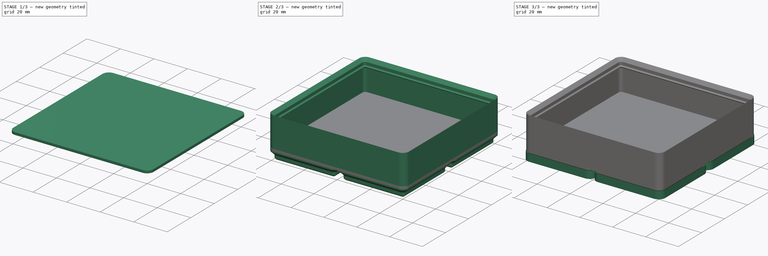
[diagram: build sequence overview — one tinted view per stage of 3, left to right]
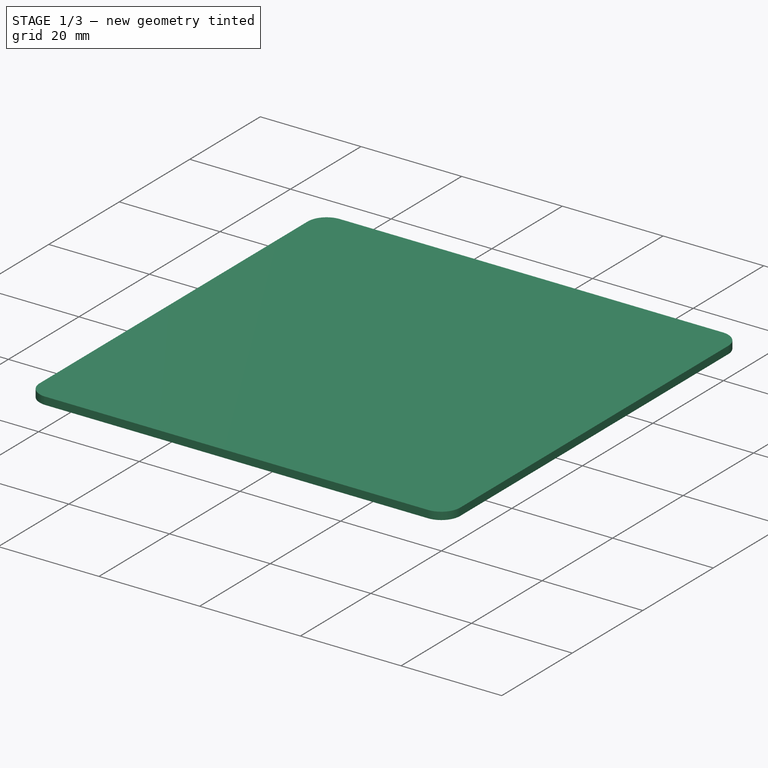
[diagram: stage 1 of 3 — iso view after this stage's code; geometry added in this stage tinted green]
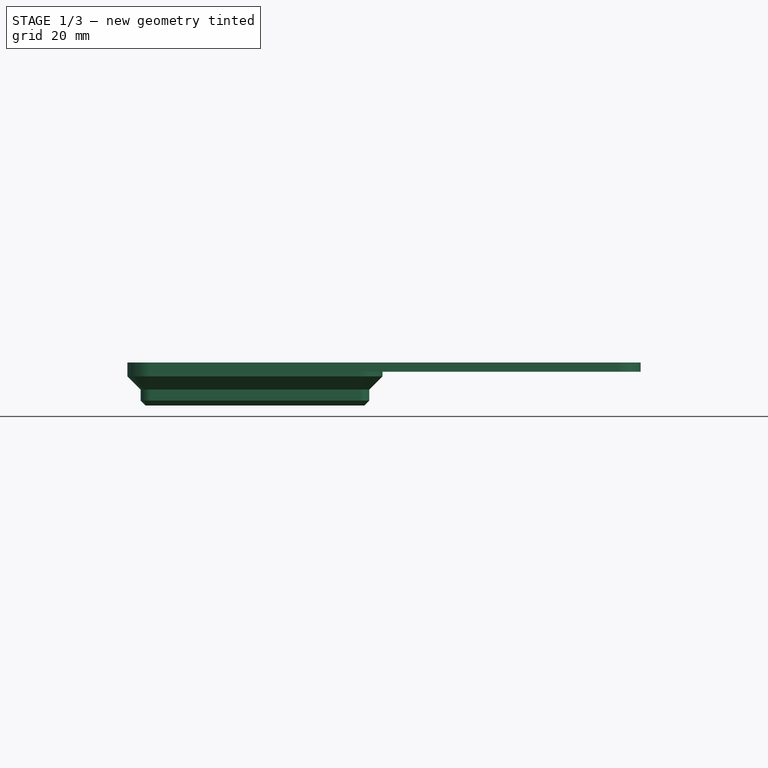
[diagram: stage 1 of 3 — front view after this stage's code; geometry added in this stage tinted green]
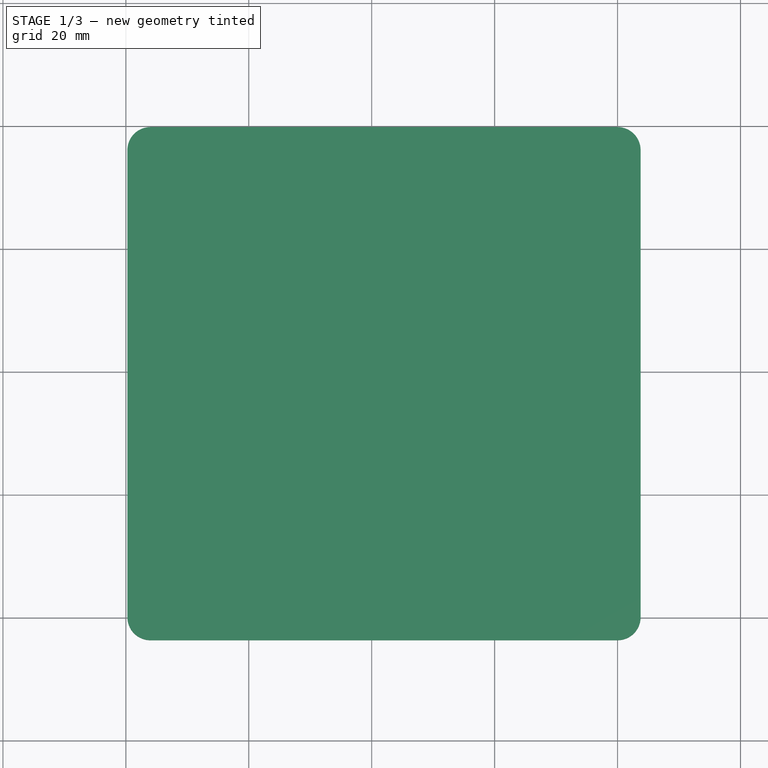
[diagram: stage 1 of 3 — top view after this stage's code; geometry added in this stage tinted green]
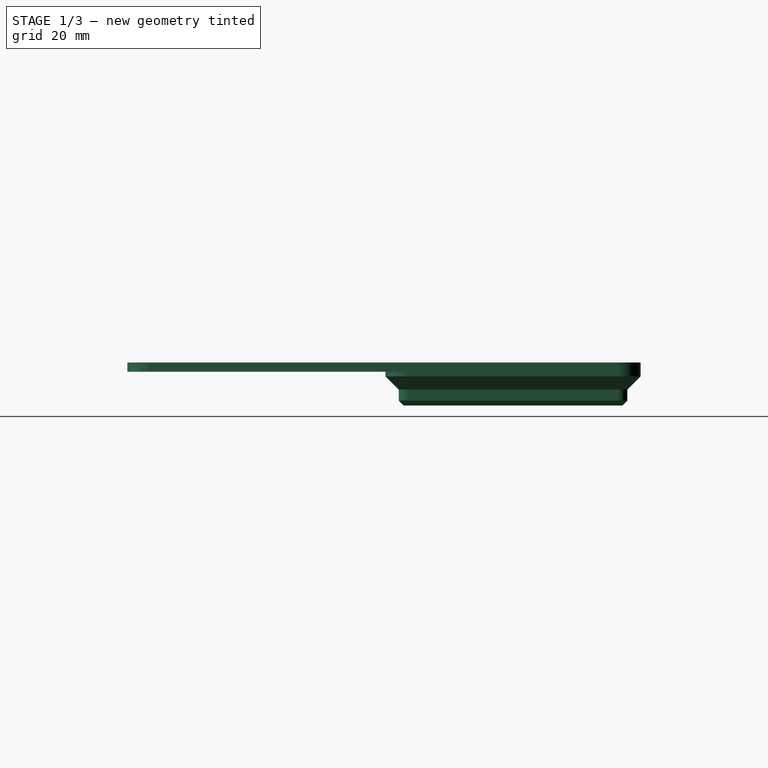
[diagram: stage 1 of 3 — right view after this stage's code; geometry added in this stage tinted green]
FCSTD DOCUMENT  (FreeCAD 0.21R33668 +26 (Git))
Label: Gridfinity Generator
License: All rights reserved
LicenseURL: http://en.wikipedia.org/wiki/All_rights_reserved
objects: Sketcher::SketchObject×11, PartDesign::Plane×8, PartDesign::LinearPattern×4, Spreadsheet::Sheet×3, PartDesign::AdditivePipe×2, PartDesign::MultiTransform×2, PartDesign::Body×2, PartDesign::Pad×2, PartDesign::AdditiveLoft×1
note: 37 computed .brp shape members not serialized (recipe doc carries the construction recipe); baked Part::Feature solids carry a one-line shape summary decoded from their .brp

FEATURE [PartDesign::Body] Body  label="Baseplate"
  Group = -> [Sketch,DatumPlane,Sketch001,AdditivePipe,MultiTransform,LinearPattern,LinearPattern001]
  Origin = -> Origin
  Tip = -> MultiTransform
FEATURE [Sketcher::SketchObject] Sketch002
  FullyConstrained = true
  MapMode = 5
  Support = -> [XY_Plane001]
  expr: Constraints[10] = <<Module Design Reference>>.base_width
  expr: Constraints[57] = <<Module Design Reference>>.base_profile1_diameter
  expr: Constraints[58] = <<Module Design Reference>>.base_profile1_width
  sketch-geometry (24):
    g0: LineSegment StartX=0 StartY=0 StartZ=0 EndX=42 EndY=0 EndZ=0
    g1: LineSegment StartX=42 StartY=0 StartZ=0 EndX=42 EndY=-42 EndZ=0
    g2: LineSegment StartX=42 StartY=-42 StartZ=0 EndX=0 EndY=-42 EndZ=0
    g3: LineSegment StartX=0 StartY=-42 StartZ=0 EndX=0 EndY=0 EndZ=0
    g4: LineSegment StartX=0 StartY=0 StartZ=0 EndX=3.2 EndY=0 EndZ=0
    g5: LineSegment StartX=3.2 StartY=0 StartZ=0 EndX=3.2 EndY=-3.2 EndZ=0
    g6: LineSegment StartX=3.2 StartY=-3.2 StartZ=0 EndX=0 EndY=-3.2 EndZ=0
    g7: LineSegment StartX=0 StartY=-3.2 StartZ=0 EndX=0 EndY=0 EndZ=0
    g8: LineSegment StartX=42 StartY=-42 StartZ=0 EndX=38.8 EndY=-42 EndZ=0
    g9: LineSegment StartX=38.8 StartY=-42 StartZ=0 EndX=38.8 EndY=-38.8 EndZ=0
    g10: LineSegment StartX=38.8 StartY=-38.8 StartZ=0 EndX=42 EndY=-38.8 EndZ=0
    g11: LineSegment StartX=42 StartY=-38.8 StartZ=0 EndX=42 EndY=-42 EndZ=0
    g12: LineSegment StartX=4 StartY=-3.2 StartZ=0 EndX=38 EndY=-3.2 EndZ=0
    g13: LineSegment StartX=38.8 StartY=-4 StartZ=0 EndX=38.8 EndY=-38 EndZ=0
    g14: LineSegment StartX=38 StartY=-38.8 StartZ=0 EndX=4 EndY=-38.8 EndZ=0
    g15: LineSegment StartX=3.2 StartY=-38 StartZ=0 EndX=3.2 EndY=-4 EndZ=0
    g16: ArcOfCircle CenterX=4 CenterY=-4 CenterZ=0 NormalX=0 NormalY=0 NormalZ=1 AngleXU=0 Radius=0.8 StartAngle=1.5708 EndAngle=3.14159
    g17: GeomPoint X=3.2 Y=-3.2 Z=0
    g18: ArcOfCircle CenterX=4 CenterY=-38 CenterZ=0 NormalX=0 NormalY=0 NormalZ=1 AngleXU=0 Radius=0.8 StartAngle=3.14159 EndAngle=4.71239
    g19: GeomPoint X=3.2 Y=-38.8 Z=0
    g20: ArcOfCircle CenterX=38 CenterY=-38 CenterZ=0 NormalX=0 NormalY=0 NormalZ=1 AngleXU=0 Radius=0.8 StartAngle=4.71239 EndAngle=6.28319
    g21: GeomPoint X=38.8 Y=-38.8 Z=0
    g22: ArcOfCircle CenterX=38 CenterY=-4 CenterZ=0 NormalX=0 NormalY=0 NormalZ=1 AngleXU=0 Radius=0.8 StartAngle=-9e-16 EndAngle=1.5708
    g23: GeomPoint X=38.8 Y=-3.2 Z=0
  constraints (59):
    c: Coincident(g0,g1)
    c: Coincident(g1,g2)
    c: Coincident(g2,g3)
    c: Coincident(g3,g0)
    c: Horizontal(g0)
    c: Horizontal(g2)
    c: Vertical(g1)
    c: Vertical(g3)
    c: Coincident(g0,g-1)
    c: Equal(g1,g2)
    c: DistanceY(g1,g1) = 42
    c: Coincident(g4,g5)
    c: Coincident(g5,g6)
    c: Coincident(g6,g7)
    c: Coincident(g7,g4)
    c: Horizontal(g4)
    c: Horizontal(g6)
    c: Vertical(g5)
    c: Vertical(g7)
    c: Coincident(g4,g0)
    c: Coincident(g8,g9)
    c: Coincident(g9,g10)
    c: Coincident(g10,g11)
    c: Coincident(g11,g8)
    c: Horizontal(g8)
    c: Horizontal(g10)
    c: Vertical(g9)
    c: Vertical(g11)
    c: Coincident(g8,g1)
    c: Equal(g10,g9)
    c: Equal(g9,g6)
    c: Equal(g6,g5)
    c: Horizontal(g12)
    c: Horizontal(g14)
    c: Vertical(g13)
    c: Vertical(g15)
    c: Coincident(g17,g5)
    c: Coincident(g21,g9)
    c: PointOnObject(g17,g12)
    c: PointOnObject(g17,g15)
    c: Tangent(g12,g16) = 1.5708
    c: Tangent(g15,g16) = 1.5708
    c: PointOnObject(g19,g15)
    c: PointOnObject(g19,g14)
    c: Tangent(g15,g18) = 1.5708
    c: Tangent(g14,g18) = 1.5708
    c: PointOnObject(g21,g14)
    c: PointOnObject(g21,g13)
    c: Tangent(g14,g20) = 1.5708
    c: Tangent(g13,g20) = 1.5708
    c: PointOnObject(g23,g13)
    c: PointOnObject(g23,g12)
    c: Tangent(g13,g22) = 1.5708
    c: Tangent(g12,g22) = 1.5708
    c: Equal(g22,g16)
    c: Equal(g16,g18)
    c: Equal(g18,g20)
    c: Diameter(g20) = 1.6
    c: DistanceY(g9,g23) = 35.6
FEATURE [PartDesign::Plane] DatumPlane001
  AttachmentOffset = pos=(0,0,0.8) rot=(0,0,1;0rad)
  Length = 130.5
  MapMode = 2
  Placement = pos=(0,0,0.8) rot=(0,0,1;0rad)
  ResizeMode = 0
  Support = -> [Sketch002]
  Width = 130.5
  expr: .AttachmentOffset.Base.z = <<Module Design Reference>>.base_profile1_height
FEATURE [Sketcher::SketchObject] Sketch003
  FullyConstrained = true
  MapMode = 5
  Placement = pos=(0,0,0.8) rot=(0,0,1;0rad)
  Support = -> [DatumPlane001]
  expr: Constraints[10] = <<Module Design Reference>>.base_width
  expr: Constraints[54] = <<Module Design Reference>>.base_profile2_diameter
  expr: Constraints[55] = <<Module Design Reference>>.base_profile2_width
  sketch-geometry (24):
    g0: LineSegment StartX=0 StartY=0 StartZ=0 EndX=42 EndY=0 EndZ=0
    g1: LineSegment StartX=42 StartY=0 StartZ=0 EndX=42 EndY=-42 EndZ=0
    g2: LineSegment StartX=42 StartY=-42 StartZ=0 EndX=0 EndY=-42 EndZ=0
    g3: LineSegment StartX=0 StartY=-42 StartZ=0 EndX=0 EndY=0 EndZ=0
    g4: LineSegment StartX=0 StartY=0 StartZ=0 EndX=2.4 EndY=0 EndZ=0
    g5: LineSegment StartX=2.4 StartY=0 StartZ=0 EndX=2.4 EndY=-2.4 EndZ=0
    g6: LineSegment StartX=2.4 StartY=-2.4 StartZ=0 EndX=0 EndY=-2.4 EndZ=0
    g7: LineSegment StartX=0 StartY=-2.4 StartZ=0 EndX=0 EndY=0 EndZ=0
    g8: LineSegment StartX=42 StartY=-42 StartZ=0 EndX=39.6 EndY=-42 EndZ=0
    g9: LineSegment StartX=39.6 StartY=-42 StartZ=0 EndX=39.6 EndY=-39.6 EndZ=0
    g10: LineSegment StartX=39.6 StartY=-39.6 StartZ=0 EndX=42 EndY=-39.6 EndZ=0
    g11: LineSegment StartX=42 StartY=-39.6 StartZ=0 EndX=42 EndY=-42 EndZ=0
    g12: LineSegment StartX=4 StartY=-2.4 StartZ=0 EndX=38 EndY=-2.4 EndZ=0
    g13: LineSegment StartX=39.6 StartY=-4 StartZ=0 EndX=39.6 EndY=-38 EndZ=0
    g14: LineSegment StartX=38 StartY=-39.6 StartZ=0 EndX=4 EndY=-39.6 EndZ=0
    g15: LineSegment StartX=2.4 StartY=-38 StartZ=0 EndX=2.4 EndY=-4 EndZ=0
    g16: ArcOfCircle CenterX=4 CenterY=-4 CenterZ=0 NormalX=0 NormalY=0 NormalZ=1 AngleXU=0 Radius=1.6 StartAngle=1.5708 EndAngle=3.14159
    g17: GeomPoint X=2.4 Y=-2.4 Z=0
    g18: ArcOfCircle CenterX=4 CenterY=-38 CenterZ=0 NormalX=0 NormalY=0 NormalZ=1 AngleXU=0 Radius=1.6 StartAngle=3.14159 EndAngle=4.71239
    g19: GeomPoint X=2.4 Y=-39.6 Z=0
    g20: ArcOfCircle CenterX=38 CenterY=-38 CenterZ=0 NormalX=0 NormalY=0 NormalZ=1 AngleXU=0 Radius=1.6 StartAngle=4.71239 EndAngle=6.28319
    g21: GeomPoint X=39.6 Y=-39.6 Z=0
    g22: ArcOfCircle CenterX=38 CenterY=-4 CenterZ=0 NormalX=0 NormalY=0 NormalZ=1 AngleXU=0 Radius=1.6 StartAngle=0 EndAngle=1.5708
    g23: GeomPoint X=39.6 Y=-2.4 Z=0
  constraints (59):
    c: Coincident(g0,g1)
    c: Coincident(g1,g2)
    c: Coincident(g2,g3)
    c: Coincident(g3,g0)
    c: Horizontal(g0)
    c: Horizontal(g2)
    c: Vertical(g1)
    c: Vertical(g3)
    c: Coincident(g0,g-1)
    c: Equal(g1,g2)
    c: DistanceY(g1,g1) = 42
    c: Coincident(g4,g5)
    c: Coincident(g5,g6)
    c: Coincident(g6,g7)
    c: Coincident(g7,g4)
    c: Horizontal(g4)
    c: Horizontal(g6)
    c: Vertical(g5)
    c: Vertical(g7)
    c: Coincident(g4,g0)
    c: Coincident(g8,g9)
    c: Coincident(g9,g10)
    c: Coincident(g10,g11)
    c: Coincident(g11,g8)
    c: Horizontal(g8)
    c: Horizontal(g10)
    c: Vertical(g9)
    c: Vertical(g11)
    c: Coincident(g8,g1)
    c: Horizontal(g12)
    c: Horizontal(g14)
    c: Vertical(g13)
    c: Vertical(g15)
    c: Coincident(g17,g5)
    c: Coincident(g21,g9)
    c: PointOnObject(g17,g12)
    c: PointOnObject(g17,g15)
    c: Tangent(g12,g16) = 1.5708
    c: Tangent(g15,g16) = 1.5708
    c: PointOnObject(g19,g15)
    c: PointOnObject(g19,g14)
    c: Tangent(g15,g18) = 1.5708
    c: Tangent(g14,g18) = 1.5708
    c: PointOnObject(g21,g14)
    c: PointOnObject(g21,g13)
    c: Tangent(g14,g20) = 1.5708
    c: Tangent(g13,g20) = 1.5708
    c: PointOnObject(g23,g13)
    c: PointOnObject(g23,g12)
    c: Tangent(g13,g22) = 1.5708
    c: Tangent(g12,g22) = 1.5708
    c: Equal(g22,g16)
    c: Equal(g16,g18)
    c: Equal(g18,g20)
    c: Diameter(g20) = 3.2
    c: DistanceY(g9,g23) = 37.2
    c: Equal(g13,g14)
    c: Equal(g5,g6)
    c: Equal(g6,g9)
FEATURE [PartDesign::Plane] DatumPlane002
  AttachmentOffset = pos=(0,0,1.8) rot=(0,0,1;0rad)
  Length = 130.5
  MapMode = 2
  Placement = pos=(0,0,2.6) rot=(0,0,1;0rad)
  ResizeMode = 0
  Support = -> [Sketch003]
  Width = 130.5
  expr: .AttachmentOffset.Base.z = <<Module Design Reference>>.base_profile2_height
FEATURE [Sketcher::SketchObject] Sketch004
  FullyConstrained = true
  MapMode = 5
  Placement = pos=(0,0,2.6) rot=(0,0,1;0rad)
  Support = -> [DatumPlane002]
  expr: Constraints[10] = <<Module Design Reference>>.base_width
  expr: Constraints[54] = <<Module Design Reference>>.base_profile3_diameter
  expr: Constraints[55] = <<Module Design Reference>>.base_profile3_width
  sketch-geometry (24):
    g0: LineSegment StartX=0 StartY=0 StartZ=0 EndX=42 EndY=0 EndZ=0
    g1: LineSegment StartX=42 StartY=0 StartZ=0 EndX=42 EndY=-42 EndZ=0
    g2: LineSegment StartX=42 StartY=-42 StartZ=0 EndX=0 EndY=-42 EndZ=0
    g3: LineSegment StartX=0 StartY=-42 StartZ=0 EndX=0 EndY=0 EndZ=0
    g4: LineSegment StartX=0 StartY=0 StartZ=0 EndX=2.4 EndY=0 EndZ=0
    g5: LineSegment StartX=2.4 StartY=0 StartZ=0 EndX=2.4 EndY=-2.4 EndZ=0
    g6: LineSegment StartX=2.4 StartY=-2.4 StartZ=0 EndX=0 EndY=-2.4 EndZ=0
    g7: LineSegment StartX=0 StartY=-2.4 StartZ=0 EndX=0 EndY=0 EndZ=0
    g8: LineSegment StartX=42 StartY=-42 StartZ=0 EndX=39.6 EndY=-42 EndZ=0
    g9: LineSegment StartX=39.6 StartY=-42 StartZ=0 EndX=39.6 EndY=-39.6 EndZ=0
    g10: LineSegment StartX=39.6 StartY=-39.6 StartZ=0 EndX=42 EndY=-39.6 EndZ=0
    g11: LineSegment StartX=42 StartY=-39.6 StartZ=0 EndX=42 EndY=-42 EndZ=0
    g12: LineSegment StartX=4 StartY=-2.4 StartZ=0 EndX=38 EndY=-2.4 EndZ=0
    g13: LineSegment StartX=39.6 StartY=-4 StartZ=0 EndX=39.6 EndY=-38 EndZ=0
    g14: LineSegment StartX=38 StartY=-39.6 StartZ=0 EndX=4 EndY=-39.6 EndZ=0
    g15: LineSegment StartX=2.4 StartY=-38 StartZ=0 EndX=2.4 EndY=-4 EndZ=0
    g16: ArcOfCircle CenterX=4 CenterY=-4 CenterZ=0 NormalX=0 NormalY=0 NormalZ=1 AngleXU=0 Radius=1.6 StartAngle=1.5708 EndAngle=3.14159
    g17: GeomPoint X=2.4 Y=-2.4 Z=0
    g18: ArcOfCircle CenterX=4 CenterY=-38 CenterZ=0 NormalX=0 NormalY=0 NormalZ=1 AngleXU=0 Radius=1.6 StartAngle=3.14159 EndAngle=4.71239
    g19: GeomPoint X=2.4 Y=-39.6 Z=0
    g20: ArcOfCircle CenterX=38 CenterY=-38 CenterZ=0 NormalX=0 NormalY=0 NormalZ=1 AngleXU=0 Radius=1.6 StartAngle=4.71239 EndAngle=6.28319
    g21: GeomPoint X=39.6 Y=-39.6 Z=0
    g22: ArcOfCircle CenterX=38 CenterY=-4 CenterZ=0 NormalX=0 NormalY=0 NormalZ=1 AngleXU=0 Radius=1.6 StartAngle=0 EndAngle=1.5708
    g23: GeomPoint X=39.6 Y=-2.4 Z=0
  constraints (59):
    c: Coincident(g0,g1)
    c: Coincident(g1,g2)
    c: Coincident(g2,g3)
    c: Coincident(g3,g0)
    c: Horizontal(g0)
    c: Horizontal(g2)
    c: Vertical(g1)
    c: Vertical(g3)
    c: Coincident(g0,g-1)
    c: Equal(g1,g2)
    c: DistanceY(g1,g1) = 42
    c: Coincident(g4,g5)
    c: Coincident(g5,g6)
    c: Coincident(g6,g7)
    c: Coincident(g7,g4)
    c: Horizontal(g4)
    c: Horizontal(g6)
    c: Vertical(g5)
    c: Vertical(g7)
    c: Coincident(g4,g0)
    c: Coincident(g8,g9)
    c: Coincident(g9,g10)
    c: Coincident(g10,g11)
    c: Coincident(g11,g8)
    c: Horizontal(g8)
    c: Horizontal(g10)
    c: Vertical(g9)
    c: Vertical(g11)
    c: Coincident(g8,g1)
    c: Equal(g10,g9)
    c: Equal(g9,g5)
    c: Equal(g5,g6)
    c: Horizontal(g12)
    c: Horizontal(g14)
    c: Vertical(g13)
    c: Vertical(g15)
    c: Coincident(g17,g5)
    c: Coincident(g21,g9)
    c: PointOnObject(g17,g12)
    c: PointOnObject(g17,g15)
    c: Tangent(g12,g16) = 1.5708
    c: Tangent(g15,g16) = 1.5708
    c: PointOnObject(g19,g15)
    c: PointOnObject(g19,g14)
    c: Tangent(g15,g18) = 1.5708
    c: Tangent(g14,g18) = 1.5708
    c: PointOnObject(g21,g14)
    c: PointOnObject(g21,g13)
    c: Tangent(g14,g20) = 1.5708
    c: Tangent(g13,g20) = 1.5708
    c: PointOnObject(g23,g13)
    c: PointOnObject(g23,g12)
    c: Tangent(g13,g22) = 1.5708
    c: Tangent(g12,g22) = 1.5708
    c: Diameter(g20) = 3.2
    c: DistanceY(g9,g23) = 37.2
    c: Equal(g13,g14)
    c: Equal(g20,g22)
    c: Equal(g22,g16)
FEATURE [PartDesign::Plane] DatumPlane003
  AttachmentOffset = pos=(0,0,2.15) rot=(0,0,1;0rad)
  Length = 130.5
  MapMode = 2
  Placement = pos=(0,0,4.75) rot=(0,0,1;0rad)
  ResizeMode = 0
  Support = -> [Sketch004]
  Width = 130.5
  expr: .AttachmentOffset.Base.z = <<Module Design Reference>>.base_profile3_height
FEATURE [Sketcher::SketchObject] Sketch005
  FullyConstrained = true
  MapMode = 5
  Placement = pos=(0,0,4.75) rot=(0,0,1;0rad)
  Support = -> [DatumPlane003]
  expr: Constraints[10] = <<Module Design Reference>>.base_width
  expr: Constraints[57] = <<Module Design Reference>>.base_profile4_diameter
  expr: Constraints[58] = <<Module Design Reference>>.base_profile4_width
  sketch-geometry (24):
    g0: LineSegment StartX=0 StartY=0 StartZ=0 EndX=42 EndY=0 EndZ=0
    g1: LineSegment StartX=42 StartY=0 StartZ=0 EndX=42 EndY=-42 EndZ=0
    g2: LineSegment StartX=42 StartY=-42 StartZ=0 EndX=0 EndY=-42 EndZ=0
    g3: LineSegment StartX=0 StartY=-42 StartZ=0 EndX=0 EndY=0 EndZ=0
    g4: LineSegment StartX=0 StartY=0 StartZ=0 EndX=0.25 EndY=0 EndZ=0
    g5: LineSegment StartX=0.25 StartY=0 StartZ=0 EndX=0.25 EndY=-0.25 EndZ=0
    g6: LineSegment StartX=0.25 StartY=-0.25 StartZ=0 EndX=0 EndY=-0.25 EndZ=0
    g7: LineSegment StartX=0 StartY=-0.25 StartZ=0 EndX=0 EndY=0 EndZ=0
    g8: LineSegment StartX=42 StartY=-42 StartZ=0 EndX=41.75 EndY=-42 EndZ=0
    g9: LineSegment StartX=41.75 StartY=-42 StartZ=0 EndX=41.75 EndY=-41.75 EndZ=0
    g10: LineSegment StartX=41.75 StartY=-41.75 StartZ=0 EndX=42 EndY=-41.75 EndZ=0
    g11: LineSegment StartX=42 StartY=-41.75 StartZ=0 EndX=42 EndY=-42 EndZ=0
    g12: LineSegment StartX=4 StartY=-0.25 StartZ=0 EndX=38 EndY=-0.25 EndZ=0
    g13: LineSegment StartX=41.75 StartY=-4 StartZ=0 EndX=41.75 EndY=-38 EndZ=0
    g14: LineSegment StartX=38 StartY=-41.75 StartZ=0 EndX=4 EndY=-41.75 EndZ=0
    g15: LineSegment StartX=0.25 StartY=-38 StartZ=0 EndX=0.25 EndY=-4 EndZ=0
    g16: ArcOfCircle CenterX=4 CenterY=-4 CenterZ=0 NormalX=0 NormalY=0 NormalZ=1 AngleXU=0 Radius=3.75 StartAngle=1.5708 EndAngle=3.14159
    g17: GeomPoint X=0.25 Y=-0.25 Z=0
    g18: ArcOfCircle CenterX=4 CenterY=-38 CenterZ=0 NormalX=0 NormalY=0 NormalZ=1 AngleXU=0 Radius=3.75 StartAngle=3.14159 EndAngle=4.71239
    g19: GeomPoint X=0.25 Y=-41.75 Z=0
    g20: ArcOfCircle CenterX=38 CenterY=-38 CenterZ=0 NormalX=0 NormalY=0 NormalZ=1 AngleXU=0 Radius=3.75 StartAngle=4.71239 EndAngle=6.28319
    g21: GeomPoint X=41.75 Y=-41.75 Z=0
    g22: ArcOfCircle CenterX=38 CenterY=-4 CenterZ=0 NormalX=0 NormalY=0 NormalZ=1 AngleXU=0 Radius=3.75 StartAngle=0 EndAngle=1.5708
    g23: GeomPoint X=41.75 Y=-0.25 Z=0
  constraints (59):
    c: Coincident(g0,g1)
    c: Coincident(g1,g2)
    c: Coincident(g2,g3)
    c: Coincident(g3,g0)
    c: Horizontal(g0)
    c: Horizontal(g2)
    c: Vertical(g1)
    c: Vertical(g3)
    c: Coincident(g0,g-1)
    c: Equal(g1,g2)
    c: DistanceY(g1,g1) = 42
    c: Coincident(g4,g5)
    c: Coincident(g5,g6)
    c: Coincident(g6,g7)
    c: Coincident(g7,g4)
    c: Horizontal(g4)
    c: Horizontal(g6)
    c: Vertical(g5)
    c: Vertical(g7)
    c: Coincident(g4,g0)
    c: Coincident(g8,g9)
    c: Coincident(g9,g10)
    c: Coincident(g10,g11)
    c: Coincident(g11,g8)
    c: Horizontal(g8)
    c: Horizontal(g10)
    c: Vertical(g9)
    c: Vertical(g11)
    c: Coincident(g8,g1)
    c: Equal(g10,g9)
    c: Equal(g9,g5)
    c: Equal(g5,g6)
    c: Horizontal(g12)
    c: Horizontal(g14)
    c: Vertical(g13)
    c: Vertical(g15)
    c: Coincident(g17,g5)
    c: Coincident(g21,g9)
    c: PointOnObject(g17,g12)
    c: PointOnObject(g17,g15)
    c: Tangent(g12,g16) = 1.5708
    c: Tangent(g15,g16) = 1.5708
    c: PointOnObject(g19,g15)
    c: PointOnObject(g19,g14)
    c: Tangent(g15,g18) = 1.5708
    c: Tangent(g14,g18) = 1.5708
    c: PointOnObject(g21,g14)
    c: PointOnObject(g21,g13)
    c: Tangent(g14,g20) = 1.5708
    c: Tangent(g13,g20) = 1.5708
    c: PointOnObject(g23,g13)
    c: PointOnObject(g23,g12)
    c: Tangent(g13,g22) = 1.5708
    c: Tangent(g12,g22) = 1.5708
    c: Equal(g16,g18)
    c: Equal(g18,g20)
    c: Equal(g20,g22)
    c: Diameter(g20) = 7.5
    c: DistanceY(g9,g23) = 41.5
FEATURE [PartDesign::Plane] DatumPlane004
  AttachmentOffset = pos=(0,0,1) rot=(0,0,1;0rad)
  Length = 130.5
  MapMode = 2
  Placement = pos=(0,0,5.75) rot=(0,0,1;0rad)
  ResizeMode = 0
  Support = -> [Sketch005]
  Width = 130.5
  expr: .AttachmentOffset.Base.z = <<Module Design Reference>>.base_profile4_height
FEATURE [PartDesign::Plane] DatumPlane005
  AttachmentOffset = pos=(0,0,5.5) rot=(0,0,1;0rad)
  Length = 130.5
  MapMode = 5
  Placement = pos=(0,0,5.5) rot=(0,0,1;0rad)
  ResizeMode = 0
  Support = -> [XY_Plane001]
  Width = 130.5
  expr: .AttachmentOffset.Base.z = <<Module Design Reference>>.base_floor_height
FEATURE [Sketcher::SketchObject] Sketch007
  FullyConstrained = true
  MapMode = 5
  Placement = pos=(0,0,5.5) rot=(0,0,1;0rad)
  Support = -> [DatumPlane005]
  expr: Constraints[10] = <<Parameters>>.gridfinity_row_count * <<Module Design Reference>>.base_width
  expr: Constraints[34] = <<Module Design Reference>>.outer_wall_diameter
  expr: Constraints[45] = <<Module Design Reference>>.base_tolerance / 2
  expr: Constraints[46] = <<Module Design Reference>>.base_tolerance / 2
  expr: Constraints[57] = <<Module Design Reference>>.base_tolerance / 2
  expr: Constraints[58] = <<Module Design Reference>>.base_tolerance / 2
  expr: Constraints[9] = <<Parameters>>.gridfinity_column_count * <<Module Design Reference>>.base_width
  sketch-geometry (24):
    g0: LineSegment StartX=0 StartY=0 StartZ=0 EndX=84 EndY=0 EndZ=0
    g1: LineSegment StartX=84 StartY=0 StartZ=0 EndX=84 EndY=-84 EndZ=0
    g2: LineSegment StartX=84 StartY=-84 StartZ=0 EndX=0 EndY=-84 EndZ=0
    g3: LineSegment StartX=0 StartY=-84 StartZ=0 EndX=0 EndY=0 EndZ=0
    g4: LineSegment StartX=4 StartY=-0.25 StartZ=0 EndX=80 EndY=-0.25 EndZ=0
    g5: LineSegment StartX=83.75 StartY=-4 StartZ=0 EndX=83.75 EndY=-80 EndZ=0
    g6: LineSegment StartX=80 StartY=-83.75 StartZ=0 EndX=4 EndY=-83.75 EndZ=0
    g7: LineSegment StartX=0.25 StartY=-80 StartZ=0 EndX=0.25 EndY=-4 EndZ=0
    g8: ArcOfCircle CenterX=4 CenterY=-4 CenterZ=0 NormalX=0 NormalY=0 NormalZ=1 AngleXU=0 Radius=3.75 StartAngle=1.5708 EndAngle=3.14159
    g9: GeomPoint X=0.25 Y=-0.25 Z=0
    g10: ArcOfCircle CenterX=4 CenterY=-80 CenterZ=0 NormalX=0 NormalY=0 NormalZ=1 AngleXU=0 Radius=3.75 StartAngle=3.14159 EndAngle=4.71239
    g11: GeomPoint X=0.25 Y=-83.75 Z=0
    g12: ArcOfCircle CenterX=80 CenterY=-80 CenterZ=0 NormalX=0 NormalY=0 NormalZ=1 AngleXU=0 Radius=3.75 StartAngle=4.71239 EndAngle=6.28319
    g13: GeomPoint X=83.75 Y=-83.75 Z=0
    g14: ArcOfCircle CenterX=80 CenterY=-4 CenterZ=0 NormalX=0 NormalY=0 NormalZ=1 AngleXU=0 Radius=3.75 StartAngle=0 EndAngle=1.5708
    g15: GeomPoint X=83.75 Y=-0.25 Z=0
    g16: LineSegment StartX=83.75 StartY=-83.75 StartZ=0 EndX=84 EndY=-83.75 EndZ=0
    g17: LineSegment StartX=84 StartY=-83.75 StartZ=0 EndX=84 EndY=-84 EndZ=0
    g18: LineSegment StartX=84 StartY=-84 StartZ=0 EndX=83.75 EndY=-84 EndZ=0
    g19: LineSegment StartX=83.75 StartY=-84 StartZ=0 EndX=83.75 EndY=-83.75 EndZ=0
    g20: LineSegment StartX=0.25 StartY=-0.25 StartZ=0 EndX=0 EndY=-0.25 EndZ=0
    g21: LineSegment StartX=0 StartY=-0.25 StartZ=0 EndX=0 EndY=0 EndZ=0
    g22: LineSegment StartX=0 StartY=0 StartZ=0 EndX=0.25 EndY=0 EndZ=0
    g23: LineSegment StartX=0.25 StartY=0 StartZ=0 EndX=0.25 EndY=-0.25 EndZ=0
  constraints (59):
    c: Coincident(g0,g1)
    c: Coincident(g1,g2)
    c: Coincident(g2,g3)
    c: Coincident(g3,g0)
    c: Horizontal(g0)
    c: Horizontal(g2)
    c: Vertical(g1)
    c: Vertical(g3)
    c: Coincident(g0,g-1)
    c: DistanceX(g0,g0) = 84
    c: DistanceY(g1,g1) = 84
    c: Horizontal(g4)
    c: Horizontal(g6)
    c: Vertical(g5)
    c: Vertical(g7)
    c: PointOnObject(g9,g4)
    c: PointOnObject(g9,g7)
    c: Tangent(g4,g8) = 1.5708
    c: Tangent(g7,g8) = 1.5708
    c: PointOnObject(g11,g7)
    c: PointOnObject(g11,g6)
    c: Tangent(g7,g10) = 1.5708
    c: Tangent(g6,g10) = 1.5708
    c: PointOnObject(g13,g6)
    c: PointOnObject(g13,g5)
    c: Tangent(g6,g12) = 1.5708
    c: Tangent(g5,g12) = 1.5708
    c: PointOnObject(g15,g5)
    c: PointOnObject(g15,g4)
    c: Tangent(g5,g14) = 1.5708
    c: Tangent(g4,g14) = 1.5708
    c: Equal(g14,g8)
    c: Equal(g8,g10)
    c: Equal(g10,g12)
    c: Diameter(g12) = 7.5
    c: Coincident(g16,g17)
    c: Coincident(g17,g18)
    c: Coincident(g18,g19)
    c: Coincident(g19,g16)
    c: Horizontal(g16)
    c: Horizontal(g18)
    c: Vertical(g17)
    c: Vertical(g19)
    c: Coincident(g16,g13)
    c: Coincident(g17,g1)
    c: DistanceX(g16,g16) = 0.25
    c: DistanceY(g19,g19) = 0.25
    c: Coincident(g20,g21)
    c: Coincident(g21,g22)
    c: Coincident(g22,g23)
    c: Coincident(g23,g20)
    c: Horizontal(g20)
    c: Horizontal(g22)
    c: Vertical(g21)
    c: Vertical(g23)
    c: Coincident(g20,g9)
    c: Coincident(g21,g0)
    c: DistanceY(g23,g23) = 0.25
    c: DistanceX(g20,g20) = 0.25
FEATURE [PartDesign::LinearPattern] LinearPattern002
  Direction = -> Sketch002 [H_Axis]
  Length = 42
  Occurrences = 2
  expr: Length = <<Module Design Reference>>.base_width * (<<Parameters>>.gridfinity_column_count - 1)
  expr: Occurrences = <<Parameters>>.gridfinity_column_count
FEATURE [PartDesign::LinearPattern] LinearPattern003
  Direction = -> Sketch002 [V_Axis]
  Length = 42
  Occurrences = 2
  Reversed = true
  expr: Length = <<Module Design Reference>>.base_width * (<<Parameters>>.gridfinity_row_count - 1)
  expr: Occurrences = <<Parameters>>.gridfinity_row_count
FEATURE [PartDesign::Plane] DatumPlane006
  AttachmentOffset = pos=(0,0,7) rot=(0,0,1;0rad)
  Length = 130.5
  MapMode = 2
  Placement = pos=(0,0,7) rot=(0,0,1;0rad)
  ResizeMode = 0
  Support = -> [XY_Plane001]
  Width = 130.5
  expr: .AttachmentOffset.Base.z = <<Module Design Reference>>.base_total_height
FEATURE [Sketcher::SketchObject] Sketch006
  FullyConstrained = true
  MapMode = 5
  Placement = pos=(0,0,5.75) rot=(0,0,1;0rad)
  Support = -> [DatumPlane004]
  expr: Constraints[10] = <<Module Design Reference>>.base_width
  expr: Constraints[57] = <<Module Design Reference>>.base_profile5_diameter
  expr: Constraints[58] = <<Module Design Reference>>.base_profile5_width
  sketch-geometry (24):
    g0: LineSegment StartX=0 StartY=0 StartZ=0 EndX=42 EndY=0 EndZ=0
    g1: LineSegment StartX=42 StartY=0 StartZ=0 EndX=42 EndY=-42 EndZ=0
    g2: LineSegment StartX=42 StartY=-42 StartZ=0 EndX=0 EndY=-42 EndZ=0
    g3: LineSegment StartX=0 StartY=-42 StartZ=0 EndX=0 EndY=0 EndZ=0
    g4: LineSegment StartX=0 StartY=0 StartZ=0 EndX=0.25 EndY=0 EndZ=0
    g5: LineSegment StartX=0.25 StartY=0 StartZ=0 EndX=0.25 EndY=-0.25 EndZ=0
    g6: LineSegment StartX=0.25 StartY=-0.25 StartZ=0 EndX=0 EndY=-0.25 EndZ=0
    g7: LineSegment StartX=0 StartY=-0.25 StartZ=0 EndX=0 EndY=0 EndZ=0
    g8: LineSegment StartX=42 StartY=-42 StartZ=0 EndX=41.75 EndY=-42 EndZ=0
    g9: LineSegment StartX=41.75 StartY=-42 StartZ=0 EndX=41.75 EndY=-41.75 EndZ=0
    g10: LineSegment StartX=41.75 StartY=-41.75 StartZ=0 EndX=42 EndY=-41.75 EndZ=0
    g11: LineSegment StartX=42 StartY=-41.75 StartZ=0 EndX=42 EndY=-42 EndZ=0
    g12: LineSegment StartX=4 StartY=-0.25 StartZ=0 EndX=38 EndY=-0.25 EndZ=0
    g13: LineSegment StartX=41.75 StartY=-4 StartZ=0 EndX=41.75 EndY=-38 EndZ=0
    g14: LineSegment StartX=38 StartY=-41.75 StartZ=0 EndX=4 EndY=-41.75 EndZ=0
    g15: LineSegment StartX=0.25 StartY=-38 StartZ=0 EndX=0.25 EndY=-4 EndZ=0
    g16: ArcOfCircle CenterX=4 CenterY=-4 CenterZ=0 NormalX=0 NormalY=0 NormalZ=1 AngleXU=0 Radius=3.75 StartAngle=1.5708 EndAngle=3.14159
    g17: GeomPoint X=0.25 Y=-0.25 Z=0
    g18: ArcOfCircle CenterX=4 CenterY=-38 CenterZ=0 NormalX=0 NormalY=0 NormalZ=1 AngleXU=0 Radius=3.75 StartAngle=3.14159 EndAngle=4.71239
    g19: GeomPoint X=0.25 Y=-41.75 Z=0
    g20: ArcOfCircle CenterX=38 CenterY=-38 CenterZ=0 NormalX=0 NormalY=0 NormalZ=1 AngleXU=0 Radius=3.75 StartAngle=4.71239 EndAngle=6.28319
    g21: GeomPoint X=41.75 Y=-41.75 Z=0
    g22: ArcOfCircle CenterX=38 CenterY=-4 CenterZ=0 NormalX=0 NormalY=0 NormalZ=1 AngleXU=0 Radius=3.75 StartAngle=0 EndAngle=1.5708
    g23: GeomPoint X=41.75 Y=-0.25 Z=0
  constraints (59):
    c: Coincident(g0,g1)
    c: Coincident(g1,g2)
    c: Coincident(g2,g3)
    c: Coincident(g3,g0)
    c: Horizontal(g0)
    c: Horizontal(g2)
    c: Vertical(g1)
    c: Vertical(g3)
    c: Coincident(g0,g-1)
    c: Equal(g1,g2)
    c: DistanceY(g1,g1) = 42
    c: Coincident(g4,g5)
    c: Coincident(g5,g6)
    c: Coincident(g6,g7)
    c: Coincident(g7,g4)
    c: Horizontal(g4)
    c: Horizontal(g6)
    c: Vertical(g5)
    c: Vertical(g7)
    c: Coincident(g4,g0)
    c: Coincident(g8,g9)
    c: Coincident(g9,g10)
    c: Coincident(g10,g11)
    c: Coincident(g11,g8)
    c: Horizontal(g8)
    c: Horizontal(g10)
    c: Vertical(g9)
    c: Vertical(g11)
    c: Coincident(g8,g1)
    c: Equal(g10,g9)
    c: Equal(g9,g5)
    c: Equal(g5,g6)
    c: Horizontal(g12)
    c: Horizontal(g14)
    c: Vertical(g13)
    c: Vertical(g15)
    c: Coincident(g17,g5)
    c: Coincident(g21,g9)
    c: PointOnObject(g17,g12)
    c: PointOnObject(g17,g15)
    c: Tangent(g12,g16) = 1.5708
    c: Tangent(g15,g16) = 1.5708
    c: PointOnObject(g19,g15)
    c: PointOnObject(g19,g14)
    c: Tangent(g15,g18) = 1.5708
    c: Tangent(g14,g18) = 1.5708
    c: PointOnObject(g21,g14)
    c: PointOnObject(g21,g13)
    c: Tangent(g14,g20) = 1.5708
    c: Tangent(g13,g20) = 1.5708
    c: PointOnObject(g23,g13)
    c: PointOnObject(g23,g12)
    c: Tangent(g13,g22) = 1.5708
    c: Tangent(g12,g22) = 1.5708
    c: Equal(g22,g16)
    c: Equal(g16,g18)
    c: Equal(g18,g20)
    c: Diameter(g20) = 7.5
    c: DistanceY(g9,g23) = 41.5
FEATURE [PartDesign::AdditiveLoft] AdditiveLoft
  Closed = false
  Profile = -> Sketch002
  Ruled = true
  Sections = -> [Sketch003,Sketch004,Sketch005,Sketch006]
FEATURE [PartDesign::Pad] Pad
  BaseFeature = -> AdditiveLoft
  Direction = (0,0,1)
  Length = 1.5
  Length2 = 10
  Profile = -> Sketch007
  ReferenceAxis = -> Sketch007 [N_Axis]
  Type = 0
  expr: Length = <<Module Design Reference>>.base_total_height - <<Module Design Reference>>.base_floor_height
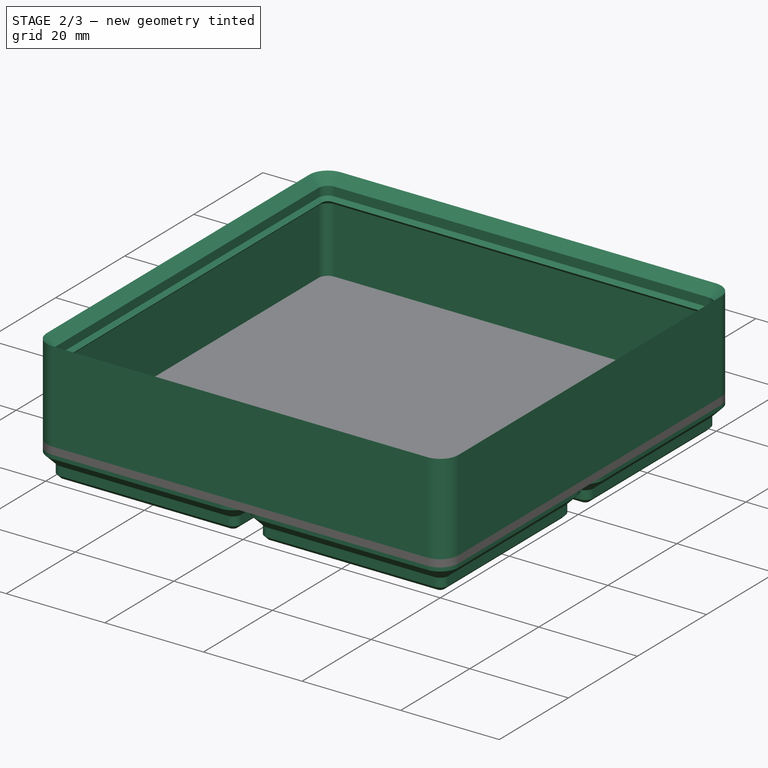
[diagram: stage 2 of 3 — iso view after this stage's code; geometry added in this stage tinted green]
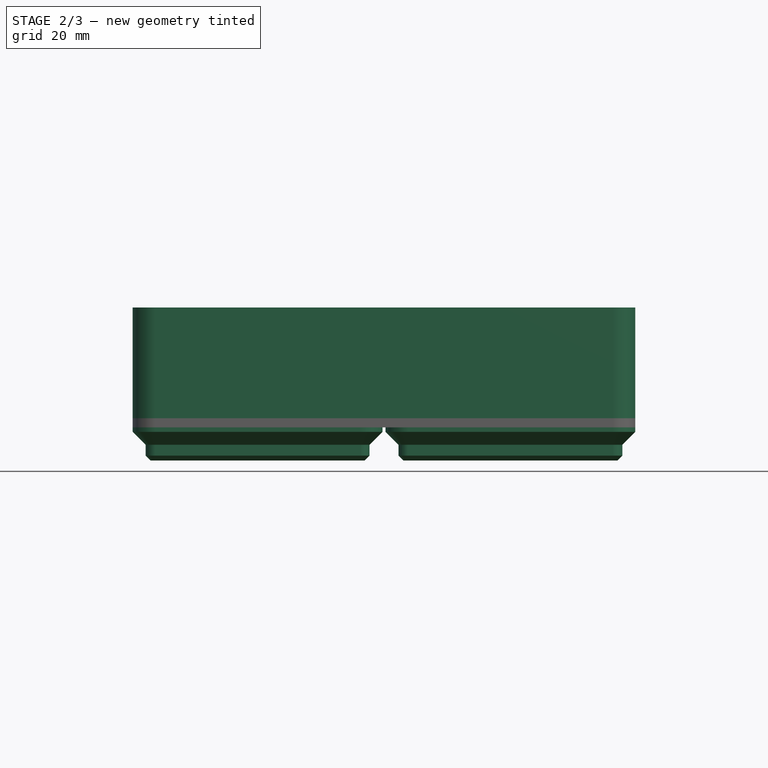
[diagram: stage 2 of 3 — front view after this stage's code; geometry added in this stage tinted green]
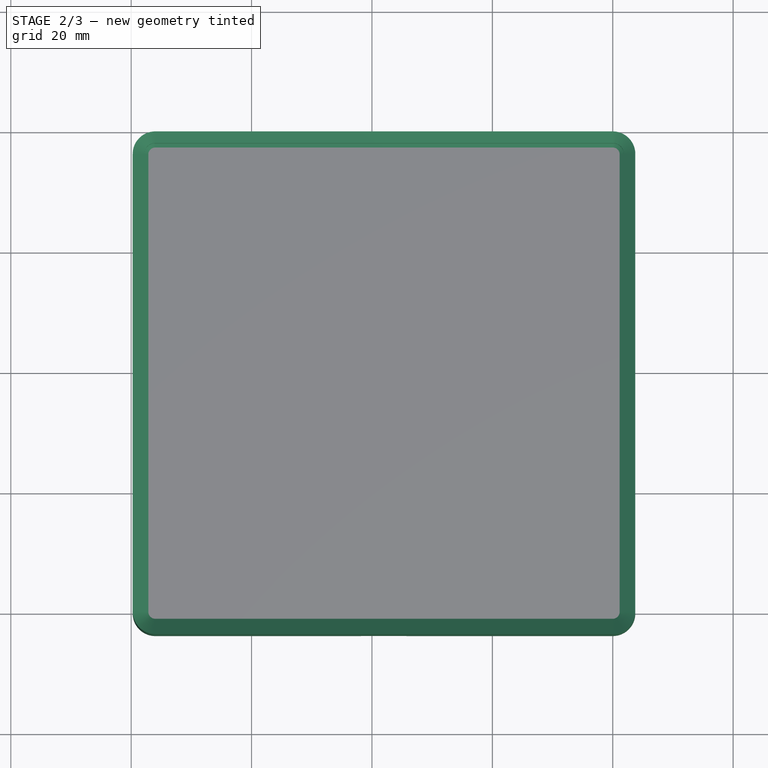
[diagram: stage 2 of 3 — top view after this stage's code; geometry added in this stage tinted green]
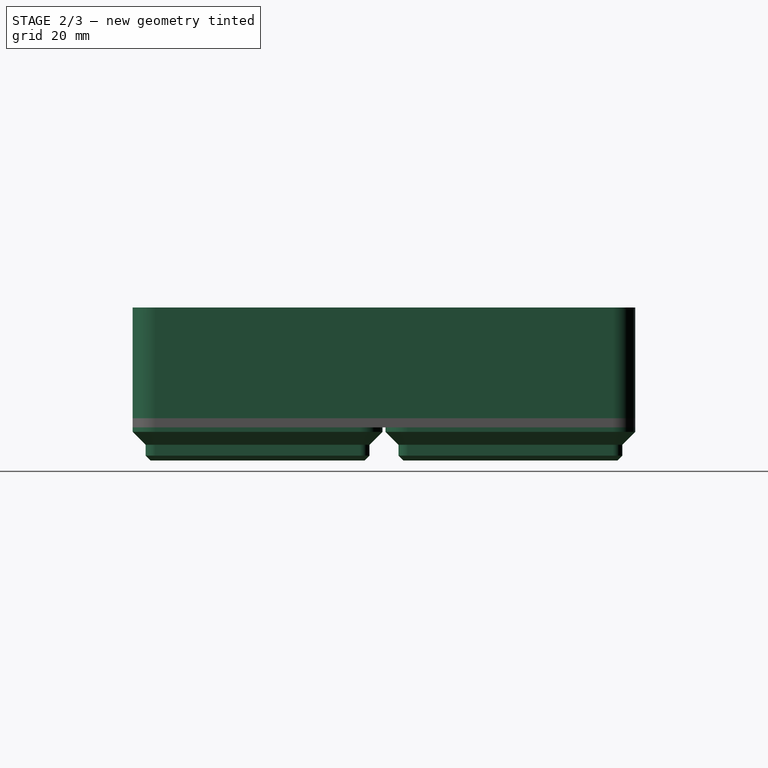
[diagram: stage 2 of 3 — right view after this stage's code; geometry added in this stage tinted green]
FEATURE [PartDesign::MultiTransform] MultiTransform001
  BaseFeature = -> Pad
  Originals = -> [AdditiveLoft]
  Transformations = -> [LinearPattern002,LinearPattern003]
FEATURE [PartDesign::Plane] DatumPlane007
  AttachmentOffset = pos=(0,0,21) rot=(0,0,1;0rad)
  Length = 123.557
  MapMode = 5
  Placement = pos=(0,-21,-4.7e-15) rot=(1,0,0;1.5708rad)
  ResizeMode = 0
  Support = -> [XZ_Plane001]
  Width = 65.2068
FEATURE [Sketcher::SketchObject] Sketch008
  FullyConstrained = true
  MapMode = 5
  Placement = pos=(0,-21,-4.7e-15) rot=(1,0,0;1.5708rad)
  Support = -> [DatumPlane007]
  expr: Constraints[16] = <<Module Design Reference>>.lip_profile3_angle
  expr: Constraints[17] = <<Module Design Reference>>.lip_profile3_height
  expr: Constraints[18] = <<Module Design Reference>>.lip_profile2_height
  expr: Constraints[19] = <<Module Design Reference>>.lip_profile1_height
  expr: Constraints[23] = <<Module Design Reference>>.lip_profile1_angle
  expr: Constraints[24] = <<Module Design Reference>>.lip_profile1_angle
  expr: Constraints[36] = <<Module Design Reference>>.base_tolerance / 2
  expr: Constraints[37] = <<Module Design Reference>>.base_total_height
  expr: Constraints[38] = <<Module Design Reference>>.lip_profile1_height + <<Parameters>>.gridfinity_height_units * <<Module Design Reference>>.height_unit_value
  expr: Constraints[41] = <<Module Design Reference>>.lip_profile1_height
  sketch-geometry (15):
    g0: LineSegment StartX=0.25 StartY=21 StartZ=0 EndX=0.25 EndY=21.7 EndZ=0
    g1: LineSegment StartX=0.25 StartY=21.7 StartZ=0 EndX=0.25 EndY=23.5 EndZ=0
    g2: LineSegment StartX=0.25 StartY=23.5 StartZ=0 EndX=0.25 EndY=25.4 EndZ=0
    g3: LineSegment StartX=0.25 StartY=25.4 StartZ=0 EndX=2.15 EndY=23.5 EndZ=0
    g4: LineSegment StartX=2.15 StartY=23.5 StartZ=0 EndX=2.15 EndY=21.7 EndZ=0
    g5: LineSegment StartX=2.15 StartY=21.7 StartZ=0 EndX=2.85 EndY=21 EndZ=0
    g6: LineSegment StartX=2.85 StartY=21 StartZ=0 EndX=2.15 EndY=20.3 EndZ=0
    g7: LineSegment StartX=0.25 StartY=21 StartZ=0 EndX=0.25 EndY=20.3 EndZ=0
    g8: LineSegment StartX=0.25 StartY=23.5 StartZ=0 EndX=2.15 EndY=23.5 EndZ=0
    g9: LineSegment StartX=0.25 StartY=21 StartZ=0 EndX=2.85 EndY=21 EndZ=0
    g10: LineSegment StartX=0.25 StartY=20.3 StartZ=0 EndX=0.25 EndY=6.3 EndZ=0
    g11: LineSegment StartX=0.25 StartY=6.3 StartZ=0 EndX=2.15 EndY=6.3 EndZ=0
    g12: LineSegment StartX=2.15 StartY=6.3 StartZ=0 EndX=2.15 EndY=20.3 EndZ=0
    g13: LineSegment StartX=0 StartY=7 StartZ=0 EndX=0.25 EndY=7 EndZ=0
    g14: LineSegment StartX=0.25 StartY=7 StartZ=0 EndX=0.25 EndY=6.3 EndZ=0
  constraints (43):
    c: Vertical(g0)
    c: Coincident(g1,g0)
    c: Vertical(g1)
    c: Vertical(g2)
    c: Vertical(g4)
    c: Coincident(g6,g5)
    c: Coincident(g7,g0)
    c: Vertical(g7)
    c: Horizontal(g2,g4)
    c: Horizontal(g0,g5)
    c: Coincident(g5,g4)
    c: Coincident(g3,g4)
    c: Coincident(g2,g3)
    c: Coincident(g2,g1)
    c: Coincident(g8,g1)
    c: Coincident(g8,g3)
    c: Angle(g3,g8) = 0.785398
    c: DistanceY(g2,g2) = 1.9
    c: DistanceY(g1,g1) = 1.8
    c: DistanceY(g0,g0) = 0.7
    c: Coincident(g9,g0)
    c: Coincident(g9,g5)
    c: Horizontal(g9)
    c: Angle(g5,g9) = 0.785398
    c: Angle(g9,g6) = 0.785398
    c: Horizontal(g7,g6)
    c: Vertical(g6,g4)
    c: Coincident(g10,g7)
    c: Vertical(g10)
    c: Coincident(g11,g10)
    c: Horizontal(g11)
    c: Coincident(g12,g11)
    c: Coincident(g12,g6)
    c: Vertical(g12)
    c: PointOnObject(g13,g-2)
    c: Horizontal(g13)
    c: DistanceX(g13,g13) = 0.25
    c: DistanceY(g-1,g13) = 7
    c: DistanceY(g10,g0) = 14.7
    c: Coincident(g14,g13)
    c: Vertical(g14)
    c: DistanceY(g14,g14) = 0.7
    c: Coincident(g10,g14)
FEATURE [Sketcher::SketchObject] Sketch009
  FullyConstrained = true
  MapMode = 5
  Placement = pos=(0,0,7) rot=(0,0,1;0rad)
  Support = -> [DatumPlane006]
  expr: Constraints[26] = <<Module Design Reference>>.base_diameter
  expr: Constraints[3] = <<Module Design Reference>>.base_tolerance / 2
  expr: Constraints[41] = <<Module Design Reference>>.base_tolerance / 2
  expr: Constraints[42] = <<Module Design Reference>>.base_tolerance / 2
  expr: Constraints[44] = <<Parameters>>.gridfinity_column_count * <<Module Design Reference>>.base_width
  expr: Constraints[45] = <<Parameters>>.gridfinity_row_count * <<Module Design Reference>>.base_width
  expr: Constraints[5] = <<Module Design Reference>>.base_tolerance / 2
  sketch-geometry (18):
    g0: LineSegment StartX=0 StartY=0 StartZ=0 EndX=0.25 EndY=0 EndZ=0
    g1: LineSegment StartX=0.25 StartY=0 StartZ=0 EndX=0.25 EndY=-0.25 EndZ=0
    g2: ArcOfCircle CenterX=4 CenterY=-4 CenterZ=0 NormalX=0 NormalY=0 NormalZ=1 AngleXU=0 Radius=3.75 StartAngle=1.5708 EndAngle=3.14159
    g3: LineSegment StartX=4 StartY=-0.25 StartZ=0 EndX=80 EndY=-0.25 EndZ=0
    g4: ArcOfCircle CenterX=80 CenterY=-4 CenterZ=0 NormalX=0 NormalY=0 NormalZ=1 AngleXU=0 Radius=3.75 StartAngle=1e-16 EndAngle=1.5708
    g5: LineSegment StartX=83.75 StartY=-4 StartZ=0 EndX=83.75 EndY=-80 EndZ=0
    g6: ArcOfCircle CenterX=80 CenterY=-80 CenterZ=0 NormalX=0 NormalY=0 NormalZ=1 AngleXU=0 Radius=3.75 StartAngle=4.71239 EndAngle=6.28319
    g7: LineSegment StartX=80 StartY=-83.75 StartZ=0 EndX=4 EndY=-83.75 EndZ=0
    g8: ArcOfCircle CenterX=4 CenterY=-80 CenterZ=0 NormalX=0 NormalY=0 NormalZ=1 AngleXU=0 Radius=3.75 StartAngle=3.14159 EndAngle=4.71239
    g9: LineSegment StartX=0.25 StartY=-80 StartZ=0 EndX=0.25 EndY=-4 EndZ=0
    g10: GeomPoint X=0.25 Y=-0.25 Z=0
    g11: GeomPoint X=83.75 Y=-83.75 Z=0
    g12: LineSegment StartX=0 StartY=0 StartZ=0 EndX=84 EndY=0 EndZ=0
    g13: LineSegment StartX=84 StartY=0 StartZ=0 EndX=84 EndY=-84 EndZ=0
    g14: LineSegment StartX=84 StartY=-84 StartZ=0 EndX=0 EndY=-84 EndZ=0
    g15: LineSegment StartX=0 StartY=-84 StartZ=0 EndX=0 EndY=0 EndZ=0
    g16: LineSegment StartX=83.75 StartY=-84 StartZ=0 EndX=83.75 EndY=-83.75 EndZ=0
    g17: LineSegment StartX=83.75 StartY=-83.75 StartZ=0 EndX=84 EndY=-83.75 EndZ=0
  constraints (46):
    c: Coincident(g0,g-1)
    c: PointOnObject(g0,g-1)
    c: Vertical(g1)
    c: DistanceX(g0,g0) = 0.25
    c: Coincident(g1,g0)
    c: DistanceY(g1,g1) = 0.25
    c: Tangent(g2,g3) = 1.5708
    c: Tangent(g3,g4) = 1.5708
    c: Tangent(g4,g5) = 1.5708
    c: Tangent(g5,g6) = 1.5708
    c: Tangent(g6,g7) = 1.5708
    c: Tangent(g7,g8) = 1.5708
    c: Tangent(g8,g9) = 1.5708
    c: Tangent(g9,g2) = 1.5708
    c: Horizontal(g3)
    c: Horizontal(g7)
    c: Vertical(g5)
    c: Vertical(g9)
    c: Equal(g2,g4)
    c: Equal(g4,g6)
    c: Equal(g6,g8)
    c: PointOnObject(g10,g3)
    c: PointOnObject(g10,g9)
    c: PointOnObject(g11,g5)
    c: PointOnObject(g11,g7)
    c: Coincident(g10,g1)
    c: Diameter(g4) = 7.5
    c: Coincident(g12,g13)
    c: Coincident(g13,g14)
    c: Coincident(g14,g15)
    c: Coincident(g15,g12)
    c: Horizontal(g12)
    c: Horizontal(g14)
    c: Vertical(g13)
    c: Vertical(g15)
    c: Coincident(g12,g0)
    c: PointOnObject(g16,g14)
    c: Vertical(g16)
    c: Coincident(g17,g16)
    c: PointOnObject(g17,g13)
    c: Horizontal(g17)
    c: DistanceX(g17,g17) = 0.25
    c: DistanceY(g16,g16) = 0.25
    c: Coincident(g11,g16)
    c: DistanceX(g12,g12) = 84
    c: DistanceY(g13,g13) = 84
FEATURE [PartDesign::AdditivePipe] AdditivePipe001
  AuxilleryCurvelinear = true
  AuxillerySpineTangent = false
  BaseFeature = -> MultiTransform001
  Binormal = (0,0,0)
  Mode = 0
  Profile = -> Sketch008
  Spine = -> Sketch009
  SpineTangent = false
  Transformation = 0
  Transition = 0
FEATURE [Sketcher::SketchObject] Sketch010
  FullyConstrained = true
  MapMode = 5
  Placement = pos=(0,0,7) rot=(0,0,1;0rad)
  Support = -> [DatumPlane006]
  expr: Constraints[10] = <<Parameters>>.gridfinity_row_count * <<Module Design Reference>>.base_width
  expr: Constraints[16] = <<Module Design Reference>>.base_tolerance / 2 + <<Module Design Reference>>.lip_profile3_height
  expr: Constraints[17] = <<Module Design Reference>>.base_tolerance / 2 + <<Module Design Reference>>.lip_profile3_height
  expr: Constraints[23] = <<Module Design Reference>>.base_tolerance / 2 + <<Module Design Reference>>.lip_profile3_height
  expr: Constraints[24] = <<Module Design Reference>>.base_tolerance / 2 + <<Module Design Reference>>.lip_profile3_height
  expr: Constraints[46] = <<Module Design Reference>>.inner_wall_diameter
  expr: Constraints[9] = <<Parameters>>.gridfinity_column_count * <<Module Design Reference>>.base_width
  sketch-geometry (18):
    g0: LineSegment StartX=0 StartY=0 StartZ=0 EndX=84 EndY=0 EndZ=0
    g1: LineSegment StartX=84 StartY=0 StartZ=0 EndX=84 EndY=-84 EndZ=0
    g2: LineSegment StartX=84 StartY=-84 StartZ=0 EndX=0 EndY=-84 EndZ=0
    g3: LineSegment StartX=0 StartY=-84 StartZ=0 EndX=0 EndY=0 EndZ=0
    g4: LineSegment StartX=2.15 StartY=0 StartZ=0 EndX=2.15 EndY=-2.15 EndZ=0
    g5: LineSegment StartX=2.15 StartY=-2.15 StartZ=0 EndX=0 EndY=-2.15 EndZ=0
    g6: LineSegment StartX=81.85 StartY=-84 StartZ=0 EndX=81.85 EndY=-81.85 EndZ=0
    g7: LineSegment StartX=81.85 StartY=-81.85 StartZ=0 EndX=84 EndY=-81.85 EndZ=0
    g8: ArcOfCircle CenterX=2.95 CenterY=-2.95 CenterZ=0 NormalX=0 NormalY=0 NormalZ=1 AngleXU=0 Radius=0.8 StartAngle=1.5708 EndAngle=3.14159
    g9: LineSegment StartX=2.95 StartY=-2.15 StartZ=0 EndX=81.05 EndY=-2.15 EndZ=0
    g10: ArcOfCircle CenterX=81.05 CenterY=-2.95 CenterZ=0 NormalX=0 NormalY=0 NormalZ=1 AngleXU=0 Radius=0.8 StartAngle=5.1e-15 EndAngle=1.5708
    g11: LineSegment StartX=81.85 StartY=-2.95 StartZ=0 EndX=81.85 EndY=-81.05 EndZ=0
    g12: ArcOfCircle CenterX=81.05 CenterY=-81.05 CenterZ=0 NormalX=0 NormalY=0 NormalZ=1 AngleXU=0 Radius=0.8 StartAngle=4.71239 EndAngle=6.28319
    g13: LineSegment StartX=81.05 StartY=-81.85 StartZ=0 EndX=2.95 EndY=-81.85 EndZ=0
    g14: ArcOfCircle CenterX=2.95 CenterY=-81.05 CenterZ=0 NormalX=0 NormalY=0 NormalZ=1 AngleXU=0 Radius=0.8 StartAngle=3.14159 EndAngle=4.71239
    g15: LineSegment StartX=2.15 StartY=-81.05 StartZ=0 EndX=2.15 EndY=-2.95 EndZ=0
    g16: GeomPoint X=2.15 Y=-2.15 Z=0
    g17: GeomPoint X=81.85 Y=-81.85 Z=0
  constraints (47):
    c: Coincident(g0,g1)
    c: Coincident(g1,g2)
    c: Coincident(g2,g3)
    c: Coincident(g3,g0)
    c: Horizontal(g0)
    c: Horizontal(g2)
    c: Vertical(g1)
    c: Vertical(g3)
    c: Coincident(g0,g-1)
    c: DistanceX(g0,g0) = 84
    c: DistanceY(g1,g1) = 84
    c: PointOnObject(g4,g0)
    c: Vertical(g4)
    c: Coincident(g5,g4)
    c: PointOnObject(g5,g3)
    c: Horizontal(g5)
    c: DistanceX(g5,g5) = 2.15
    c: DistanceY(g4,g4) = 2.15
    c: PointOnObject(g6,g2)
    c: Vertical(g6)
    c: Coincident(g7,g6)
    c: PointOnObject(g7,g1)
    c: Horizontal(g7)
    c: DistanceX(g7,g7) = 2.15
    c: DistanceY(g6,g6) = 2.15
    c: Tangent(g8,g9) = 1.5708
    c: Tangent(g9,g10) = 1.5708
    c: Tangent(g10,g11) = 1.5708
    c: Tangent(g11,g12) = 1.5708
    c: Tangent(g12,g13) = 1.5708
    c: Tangent(g13,g14) = 1.5708
    c: Tangent(g14,g15) = 1.5708
    c: Tangent(g15,g8) = 1.5708
    c: Horizontal(g9)
    c: Horizontal(g13)
    c: Vertical(g11)
    c: Vertical(g15)
    c: Equal(g8,g10)
    c: Equal(g10,g12)
    c: Equal(g12,g14)
    c: PointOnObject(g16,g9)
    c: PointOnObject(g16,g15)
    c: PointOnObject(g17,g11)
    c: PointOnObject(g17,g13)
    c: Coincident(g16,g4)
    c: Coincident(g17,g6)
    c: Diameter(g10) = 1.6
FEATURE [PartDesign::Pad] Pad001
  BaseFeature = -> AdditivePipe001
  Direction = (0,0,1)
  Length = 1e-06
  Length2 = 10
  Profile = -> Sketch010
  ReferenceAxis = -> Sketch010 [N_Axis]
  Type = 0
  expr: Length = <<Module Design Reference>>.zero + <<Parameters>>.gridfinity_floor_units * <<Module Design Reference>>.height_unit_value
FEATURE [PartDesign::Body] Body001  label="Module"
  Group = -> [Sketch002,DatumPlane001,Sketch003,DatumPlane002,Sketch004,DatumPlane003,Sketch005,DatumPlane004,Sketch006,AdditiveLoft,DatumPlane005,Sketch007,Pad,MultiTransform001,LinearPattern002,LinearPattern003,DatumPlane006,DatumPlane007,Sketch008,Sketch009,AdditivePipe001,Sketch010,Pad001]
  Origin = -> Origin001
  Tip = -> Pad001
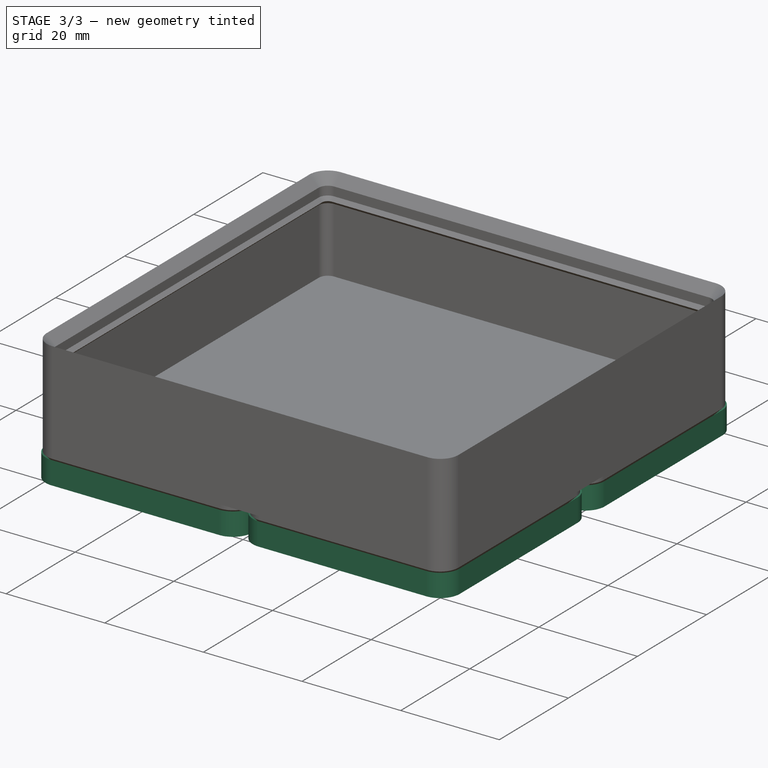
[diagram: stage 3 of 3 — iso view after this stage's code; geometry added in this stage tinted green]
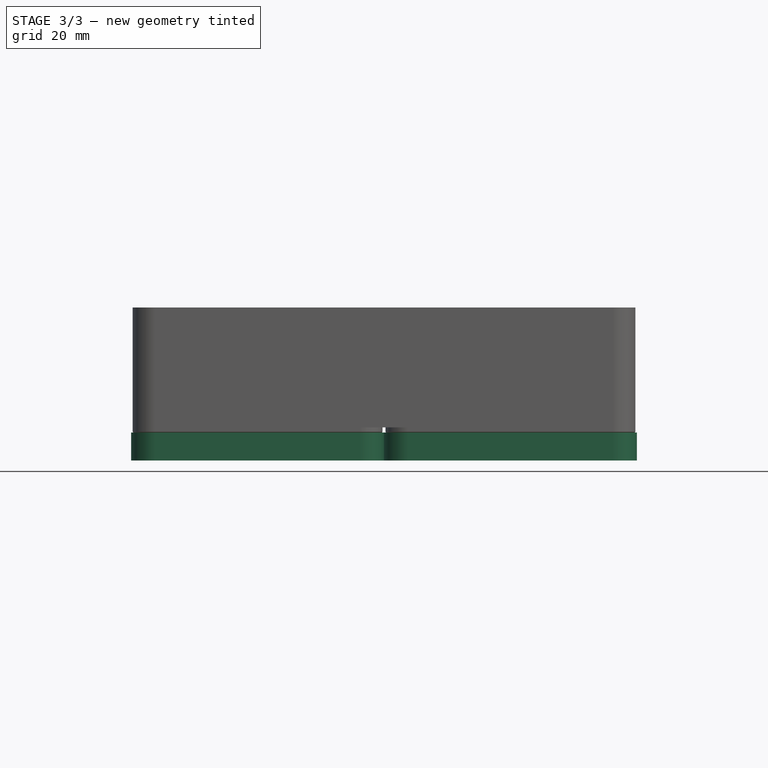
[diagram: stage 3 of 3 — front view after this stage's code; geometry added in this stage tinted green]
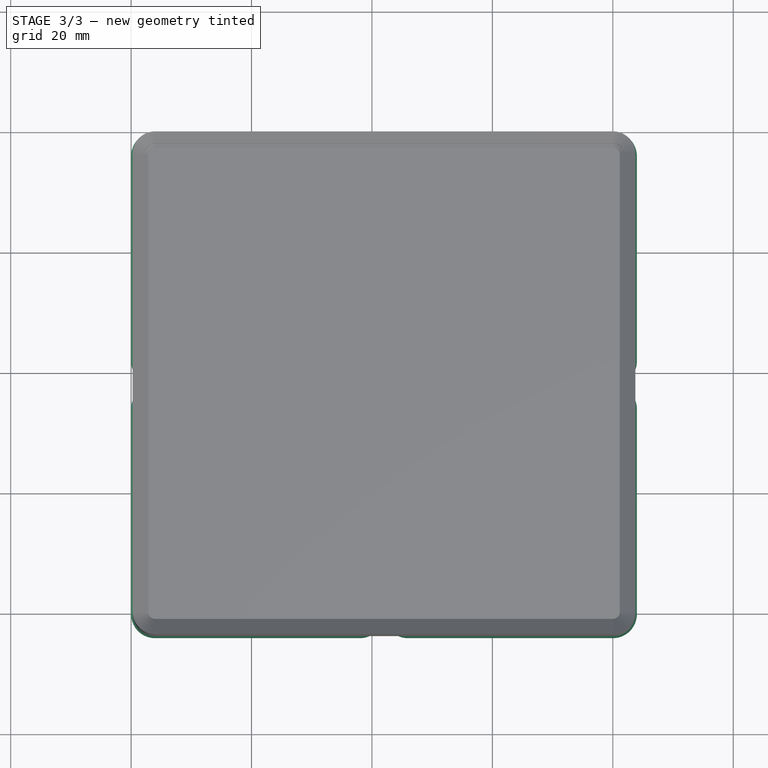
[diagram: stage 3 of 3 — top view after this stage's code; geometry added in this stage tinted green]
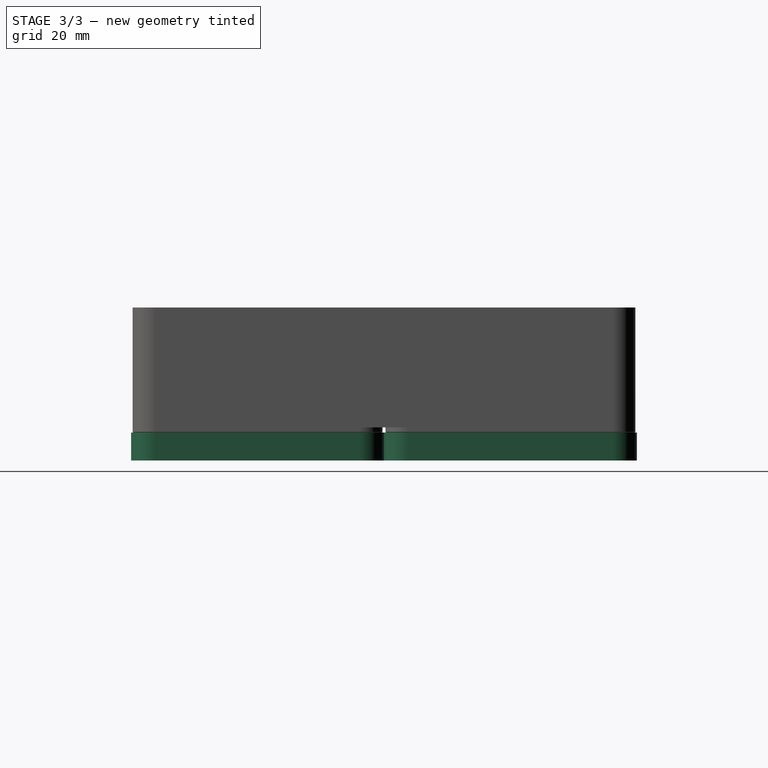
[diagram: stage 3 of 3 — right view after this stage's code; geometry added in this stage tinted green]
FEATURE [Spreadsheet::Sheet] Spreadsheet  label="Parameters"
  cells = A1='Edit the values in this spreadsheet to create custom sized Gridfinity parts; A2='Name; B2='Value; C2='Requirements; D2='Description; A3='Columns; B3(gridfinity_column_count)=2; C3='>= 1; D3='Number of columns for baseplate and bin; A4='Rows; B4(gridfinity_row_count)=2; C4='>= 1; D4='Number of rows for baseplate and bin; A5='Wall Height Units; B5(gridfinity_height_units)=2; C5='>= 0; D5='Number of height units for bin walls; A6='Foor Height Units; B6(gridfinity_floor_units)=0; C6='>= 0, <= Wall Height Units; D6='Number of height units for bin floor
FEATURE [Spreadsheet::Sheet] Spreadsheet001  label="Baseplate Design Reference"
  cells = A1='Values from the Gridfinity Design Reference, v5; A2='Name; B2='Value; C2='Notes; A3='Baseplate Size; B3(baseplate_size)==42 mm; A4='Baseplate Height; B4(baseplate_height)==5 mm; A5='Baseplate Corner Diameter; B5(baseplate_corner_diameter)==8 mm; A6='Baseplate Profile 1 Height; B6(baseplate_profile1_height)==0.7 mm; A7='Baseplate Profile 2 Height; B7(baseplate_profile2_height)==1.8 mm; A8='Baseplate Profile 3 Height; B8(baseplate_profile3_height)==2.15 mm; A9='Baseplate Profile 1 Angle; B9(baseplate_profile1_angle)==45 °; A10='Baseplate Profile 3 Angle; B10(baseplate_profile3_angle)==45 °
FEATURE [Spreadsheet::Sheet] Spreadsheet002  label="Module Design Reference"
  cells = A1='Values from the Gridfinity Design Reference, v5; A2='Name; B2='Value; C2='Notes; A3='Base Width; B3(base_width)==42 mm; C3='Includes 0.5mm tolerance; A4='Base Height; B4(base_height)==4.75 mm; A5='Base Diameter; B5(base_diameter)==7.5 mm; A6='Base Tolerance; B6(base_tolerance)==0.5 mm; A7='Base Floor Height; B7(base_floor_height)==5.5 mm; A8='Base Total Height; B8(base_total_height)==7 mm; A9='Base Profile 1 Width; B9(base_profile1_width)==35.6 mm; A10='Base Profile 2 Width; B10(base_profile2_width)==37.2 mm; A11='Base Profile 3 Width; B11(base_profile3_width)==37.2 mm; A12='Base Profile 4 Width; B12(base_profile4_width)==41.5 mm; A13='Base Profile 5 Width; B13(base_profile5_width)==41.5 mm; A14='Base Profile 1 Height; B14(base_profile1_height)==0.8 mm; A15='Base Profile 2 Height; B15(base_profile2_height)==1.8 mm; A16='Base Profile 3 Height; B16(base_profile3_height)==2.15 mm; A17='Base Profile 4 Height; B17(base_profile4_height)==1 mm; A18='Base Profile 1 Angle; B18(base_profile1_angle)==45 °; A19='Base Profile 3 Angle ; B19(base_profile3_angle)==45 °; A20='Base Profile 1 Diameter; B20(base_profile1_diameter)==1.6 mm; A21='Base Profile 2 Diameter; B21(base_profile2_diameter)==3.2 mm; A22='Base Profile 3 Diameter; B22(base_profile3_diameter)==3.2 mm; A23='Base Profile 4 Diameter; B23(base_profile4_diameter)==7.5 mm; A24='Base Profile 5 Diameter; B24(base_profile5_diameter)==7.5 mm; A25='One Height Unit; B25(height_unit_value)==7 mm; A26='Wall Width; B26(wall_width)==2.6 mm; A27='Outer Wall Diameter; B27(outer_wall_diameter)==7.5 mm; A28='Inner Wall Diameter; B28(inner_wall_diameter)==1.6 mm; A29='Lip Profile 1 Height; B29(lip_profile1_height)==0.7 mm; A30='Lip Profile 2 Height; B30(lip_profile2_height)==1.8 mm; A31='Lip Profile 3 Height; B31(lip_profile3_height)==1.9 mm; A32='Lip Profile 1 Angle; B32(lip_profile1_angle)==45 °; A33='Lip Profile 3 Angle; B33(lip_profile3_angle)==45 °; A34='Zero; B34(zero)==1e-06 mm; A36='Notes:; A37='Basep Profile 5 extends Profile 4 in to the floor plane to complete the body before the transform
FEATURE [Sketcher::SketchObject] Sketch
  FullyConstrained = true
  MapMode = 5
  Support = -> [XY_Plane]
  expr: Constraints[25] = <<Baseplate Design Reference>>.baseplate_corner_diameter
  expr: Constraints[5] = <<Baseplate Design Reference>>.baseplate_size
  sketch-geometry (12):
    g0: LineSegment StartX=4 StartY=0 StartZ=0 EndX=38 EndY=0 EndZ=0
    g1: LineSegment StartX=42 StartY=-4 StartZ=0 EndX=42 EndY=-38 EndZ=0
    g2: LineSegment StartX=38 StartY=-42 StartZ=0 EndX=4 EndY=-42 EndZ=0
    g3: LineSegment StartX=0 StartY=-38 StartZ=0 EndX=0 EndY=-4 EndZ=0
    g4: ArcOfCircle CenterX=4 CenterY=-4 CenterZ=0 NormalX=0 NormalY=0 NormalZ=1 AngleXU=0 Radius=4 StartAngle=1.5708 EndAngle=3.14159
    g5: GeomPoint X=0 Y=0 Z=0
    g6: ArcOfCircle CenterX=4 CenterY=-38 CenterZ=0 NormalX=0 NormalY=0 NormalZ=1 AngleXU=0 Radius=4 StartAngle=3.14159 EndAngle=4.71239
    g7: GeomPoint X=0 Y=-42 Z=0
    g8: ArcOfCircle CenterX=38 CenterY=-38 CenterZ=0 NormalX=0 NormalY=0 NormalZ=1 AngleXU=0 Radius=4 StartAngle=4.71239 EndAngle=6.28319
    g9: GeomPoint X=42 Y=-42 Z=0
    g10: ArcOfCircle CenterX=38 CenterY=-4 CenterZ=0 NormalX=0 NormalY=0 NormalZ=1 AngleXU=0 Radius=4 StartAngle=0 EndAngle=1.5708
    g11: GeomPoint X=42 Y=0 Z=0
  constraints (27):
    c: Horizontal(g0)
    c: Horizontal(g2)
    c: Vertical(g1)
    c: Vertical(g3)
    c: Coincident(g5,g-1)
    c: DistanceY(g9,g11) = 42
    c: PointOnObject(g5,g0)
    c: PointOnObject(g5,g3)
    c: Tangent(g0,g4) = 1.5708
    c: Tangent(g3,g4) = 1.5708
    c: PointOnObject(g7,g3)
    c: PointOnObject(g7,g2)
    c: Tangent(g3,g6) = 1.5708
    c: Tangent(g2,g6) = 1.5708
    c: PointOnObject(g9,g2)
    c: PointOnObject(g9,g1)
    c: Tangent(g2,g8) = 1.5708
    c: Tangent(g1,g8) = 1.5708
    c: PointOnObject(g11,g1)
    c: PointOnObject(g11,g0)
    c: Tangent(g1,g10) = 1.5708
    c: Tangent(g0,g10) = 1.5708
    c: Equal(g10,g4)
    c: Equal(g4,g6)
    c: Equal(g6,g8)
    c: Diameter(g8) = 8
    c: Equal(g1,g2)
FEATURE [PartDesign::Plane] DatumPlane
  AttachmentOffset = pos=(0,0,10) rot=(0,0,1;0rad)
  Length = 123.765
  MapMode = 3
  Placement = pos=(0,-10,2.2e-15) rot=(1,0,0;1.5708rad)
  ResizeMode = 0
  Support = -> [Sketch]
  Width = 64.7648
FEATURE [Sketcher::SketchObject] Sketch001
  FullyConstrained = true
  MapMode = 5
  Placement = pos=(0,-10,2.2e-15) rot=(1,0,0;1.5708rad)
  Support = -> [DatumPlane]
  expr: Constraints[18] = <<Baseplate Design Reference>>.baseplate_profile1_angle
  expr: Constraints[19] = <<Baseplate Design Reference>>.baseplate_profile3_angle
  expr: Constraints[21] = <<Baseplate Design Reference>>.baseplate_profile1_height
  expr: Constraints[22] = <<Baseplate Design Reference>>.baseplate_profile2_height
  expr: Constraints[23] = <<Baseplate Design Reference>>.baseplate_profile3_height
  sketch-geometry (9):
    g0: LineSegment StartX=0 StartY=0 StartZ=0 EndX=0 EndY=0.7 EndZ=0
    g1: LineSegment StartX=0 StartY=0.7 StartZ=0 EndX=0 EndY=2.5 EndZ=0
    g2: LineSegment StartX=0 StartY=2.5 StartZ=0 EndX=0 EndY=4.65 EndZ=0
    g3: LineSegment StartX=0 StartY=4.65 StartZ=0 EndX=2.15 EndY=2.5 EndZ=0
    g4: LineSegment StartX=2.15 StartY=2.5 StartZ=0 EndX=2.15 EndY=0.7 EndZ=0
    g5: LineSegment StartX=2.15 StartY=0.7 StartZ=0 EndX=2.85 EndY=0 EndZ=0
    g6: LineSegment StartX=2.85 StartY=0 StartZ=0 EndX=0 EndY=0 EndZ=0
    g7: LineSegment StartX=2.15 StartY=0.7 StartZ=0 EndX=0 EndY=0.7 EndZ=0
    g8: LineSegment StartX=0 StartY=2.5 StartZ=0 EndX=2.15 EndY=2.5 EndZ=0
  constraints (24):
    c: Coincident(g0,g-1)
    c: PointOnObject(g0,g-2)
    c: Coincident(g1,g0)
    c: PointOnObject(g1,g-2)
    c: Coincident(g2,g1)
    c: PointOnObject(g2,g-2)
    c: Coincident(g3,g2)
    c: Coincident(g4,g3)
    c: Coincident(g5,g4)
    c: PointOnObject(g5,g-1)
    c: Coincident(g6,g5)
    c: Coincident(g6,g0)
    c: Coincident(g7,g4)
    c: Coincident(g7,g0)
    c: Horizontal(g7)
    c: Coincident(g8,g1)
    c: Coincident(g8,g3)
    c: Horizontal(g8)
    c: Angle(g5,g6) = 0.785398
    c: Angle(g3,g8) = 0.785398
    c: Vertical(g4)
    c: DistanceY(g0,g0) = 0.7
    c: DistanceY(g1,g1) = 1.8
    c: DistanceY(g2,g2) = 2.15
FEATURE [PartDesign::AdditivePipe] AdditivePipe
  AuxilleryCurvelinear = true
  AuxillerySpineTangent = false
  Binormal = (0,0,0)
  Mode = 0
  Placement = pos=(0,-10,2e-15) rot=(1,0,0;1.5708rad)
  Profile = -> Sketch001
  Spine = -> Sketch
  SpineTangent = false
  Transformation = 0
  Transition = 0
FEATURE [PartDesign::LinearPattern] LinearPattern
  Direction = -> Sketch001 [H_Axis]
  Length = 42
  Occurrences = 2
  Placement = pos=(0,-10,2e-15) rot=(1,0,0;1.5708rad)
  expr: Length = <<Baseplate Design Reference>>.baseplate_size * (<<Parameters>>.gridfinity_column_count - 1)
  expr: Occurrences = <<Parameters>>.gridfinity_column_count
FEATURE [PartDesign::LinearPattern] LinearPattern001
  Direction = -> Sketch001 [N_Axis]
  Length = 42
  Occurrences = 2
  Placement = pos=(0,-10,2e-15) rot=(1,0,0;1.5708rad)
  expr: Length = <<Baseplate Design Reference>>.baseplate_size * (<<Parameters>>.gridfinity_row_count - 1)
  expr: Occurrences = <<Parameters>>.gridfinity_row_count
FEATURE [PartDesign::MultiTransform] MultiTransform
  BaseFeature = -> AdditivePipe
  Originals = -> [AdditivePipe]
  Placement = pos=(0,-10,2e-15) rot=(1,0,0;1.5708rad)
  Transformations = -> [LinearPattern,LinearPattern001]
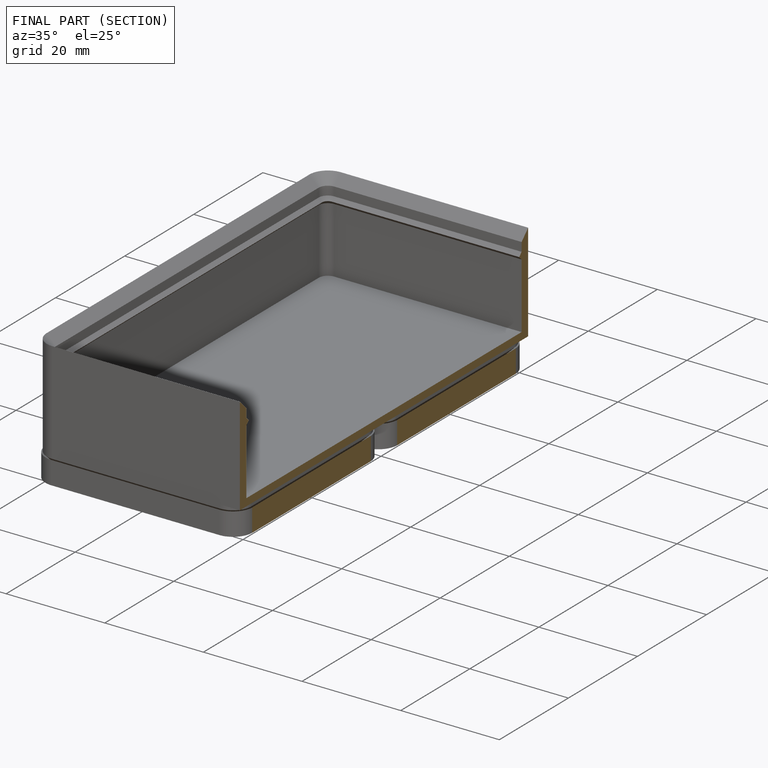
[diagram: finished part — half-section view (interior)]
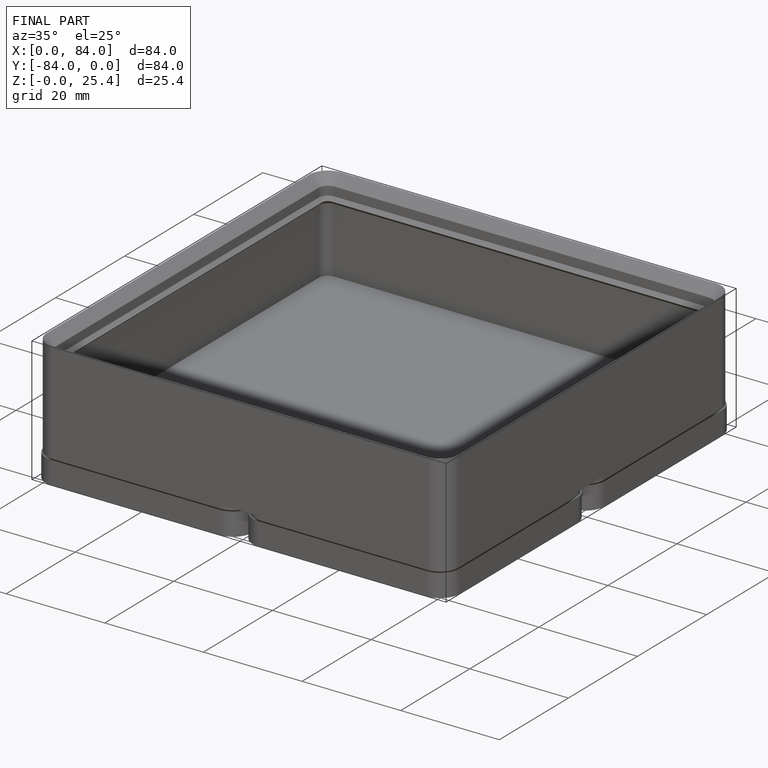
[diagram: finished part — iso view with bounding-box wireframe]
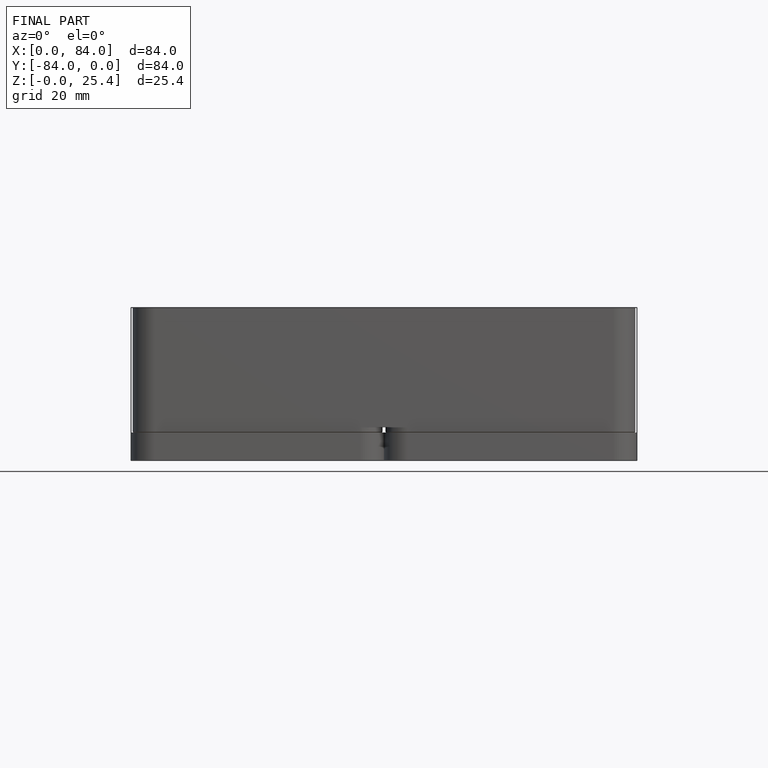
[diagram: finished part — front view with bounding-box wireframe]
